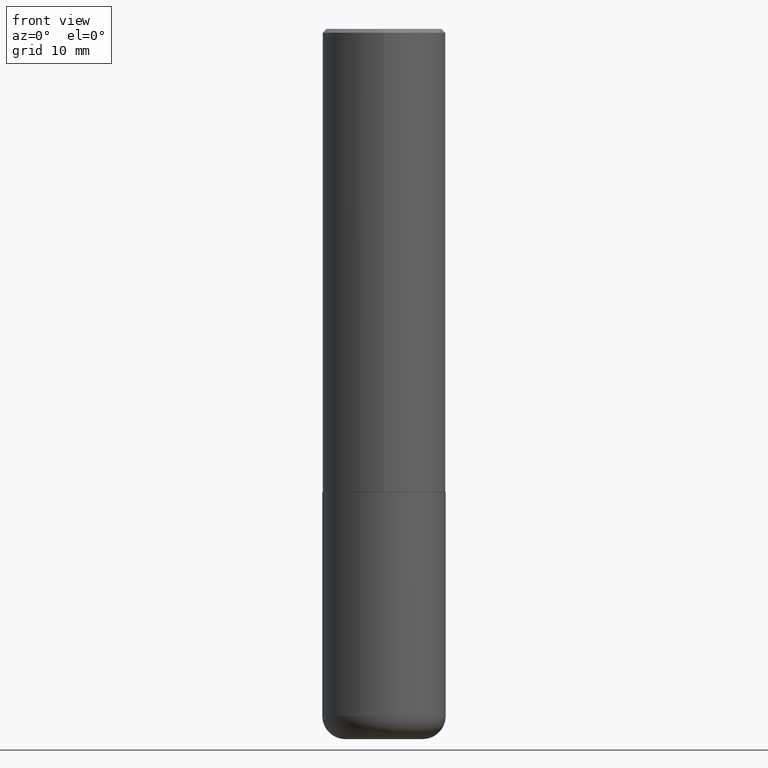
[diagram: clean part render]
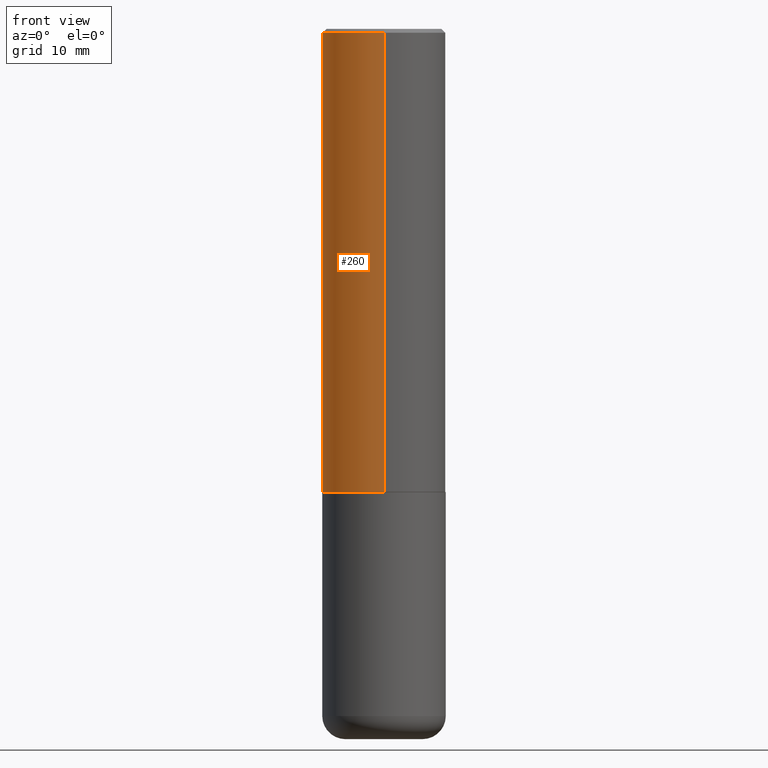
[diagram: same view with one face highlighted and labeled with its STEP entity id]
A machine part, front view. The second image highlights one B-rep face of the part: STEP entity #260.
In plain terms, the highlighted cylindrical surface (partial cylindrical patch) has radius 7.9997 mm, axis along (-0, 0, 1).
Its self-contained STEP definition (entity closure, byte-faithful):
#3 = EDGE_CURVE ( 'NONE', #365, #248, #140, .T. ) ;
#9 = CARTESIAN_POINT ( 'NONE',  ( 2.237854346276435985E-15, 0.3149500000000001743, -1.099776987529980703E-15 ) ) ;
#47 = CARTESIAN_POINT ( 'NONE',  ( -2.199284095337233467E-15, -0.3149500000000085564, -2.361199999999998411 ) ) ;
#49 = CARTESIAN_POINT ( 'NONE',  ( 2.237854346276465567E-15, 0.3149499999999920141, -2.361200000000000632 ) ) ;
#64 = CYLINDRICAL_SURFACE ( 'NONE', #325, 0.3149500000000001743 ) ;
#69 = CARTESIAN_POINT ( 'NONE',  ( 4.890339244365585170E-31, -6.983819574726043281E-17, -0.02000000000000006981 ) ) ;
#76 = ORIENTED_EDGE ( 'NONE', *, *, #336, .T. ) ;
#94 = EDGE_CURVE ( 'NONE', #262, #248, #407, .T. ) ;
#95 = CARTESIAN_POINT ( 'NONE',  ( -2.160713844398143363E-15, -0.3149500000000000632, -0.01999999999999896652 ) ) ;
#97 = DIRECTION ( 'NONE',  ( -2.445169622182784195E-29, 3.491909787363010375E-15, 1.000000000000000000 ) ) ;
#113 = ORIENTED_EDGE ( 'NONE', *, *, #224, .F. ) ;
#114 = DIRECTION ( 'NONE',  ( -2.445169622182784195E-29, 3.491909787363009980E-15, 1.000000000000000000 ) ) ;
#120 = LINE ( 'NONE', #9, #303 ) ;
#140 = LINE ( 'NONE', #359, #400 ) ;
#164 = DIRECTION ( 'NONE',  ( -2.445169622182784195E-29, 3.491909787363010375E-15, 1.000000000000000000 ) ) ;
#175 = CARTESIAN_POINT ( 'NONE',  ( 0.000000000000000000, 0.000000000000000000, 0.000000000000000000 ) ) ;
#186 = DIRECTION ( 'NONE',  ( -2.445169622182784195E-29, 3.491909787363010375E-15, 1.000000000000000000 ) ) ;
#201 = CARTESIAN_POINT ( 'NONE',  ( 5.773534511897989086E-29, -8.245097389921538599E-15, -2.361199999999999743 ) ) ;
#206 = CIRCLE ( 'NONE', #417, 0.3149500000000002853 ) ;
#221 = VERTEX_POINT ( 'NONE', #49 ) ;
#222 = ORIENTED_EDGE ( 'NONE', *, *, #3, .T. ) ;
#224 = EDGE_CURVE ( 'NONE', #221, #262, #120, .T. ) ;
#227 = AXIS2_PLACEMENT_3D ( 'NONE', #69, #186, #410 ) ;
#238 = DIRECTION ( 'NONE',  ( -6.982962677686264344E-15, -1.000000000000000000, 3.491909787363010375E-15 ) ) ;
#248 = VERTEX_POINT ( 'NONE', #95 ) ;
#260 = ADVANCED_FACE ( 'NONE', ( #370 ), #64, .T. ) ;
#262 = VERTEX_POINT ( 'NONE', #312 ) ;
#297 = DIRECTION ( 'NONE',  ( -6.982962677686265922E-15, -1.000000000000000000, 3.469564049740290009E-15 ) ) ;
#303 = VECTOR ( 'NONE', #114, 39.37007874015748143 ) ;
#312 = CARTESIAN_POINT ( 'NONE',  ( 2.199284095337289871E-15, 0.3149499999999999522, -0.02000000000000116962 ) ) ;
#325 = AXIS2_PLACEMENT_3D ( 'NONE', #175, #97, #238 ) ;
#328 = EDGE_LOOP ( 'NONE', ( #113, #76, #222, #361 ) ) ;
#336 = EDGE_CURVE ( 'NONE', #221, #365, #206, .T. ) ;
#356 = DIRECTION ( 'NONE',  ( -2.445169622182784195E-29, 3.491909787363009980E-15, 1.000000000000000000 ) ) ;
#359 = CARTESIAN_POINT ( 'NONE',  ( -2.199284095337290265E-15, -0.3149500000000001743, 1.099776987529980703E-15 ) ) ;
#361 = ORIENTED_EDGE ( 'NONE', *, *, #94, .F. ) ;
#365 = VERTEX_POINT ( 'NONE', #47 ) ;
#370 = FACE_OUTER_BOUND ( 'NONE', #328, .T. ) ;
#400 = VECTOR ( 'NONE', #356, 39.37007874015748143 ) ;
#407 = CIRCLE ( 'NONE', #227, 0.3149500000000000077 ) ;
#410 = DIRECTION ( 'NONE',  ( -6.982962677686265922E-15, -1.000000000000000000, 3.496670018878889100E-15 ) ) ;
#417 = AXIS2_PLACEMENT_3D ( 'NONE', #201, #164, #297 ) ;